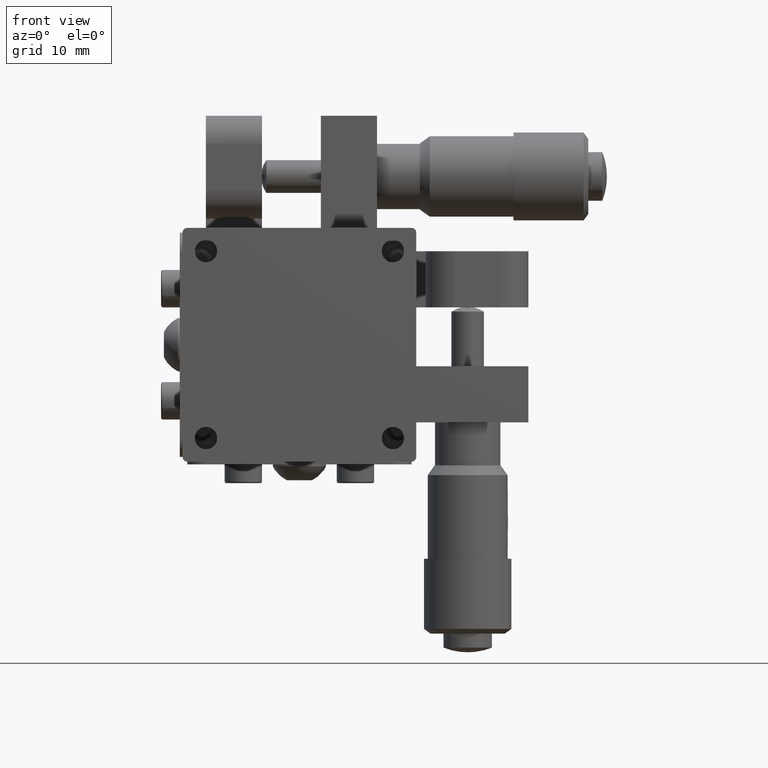
[diagram: clean part render]
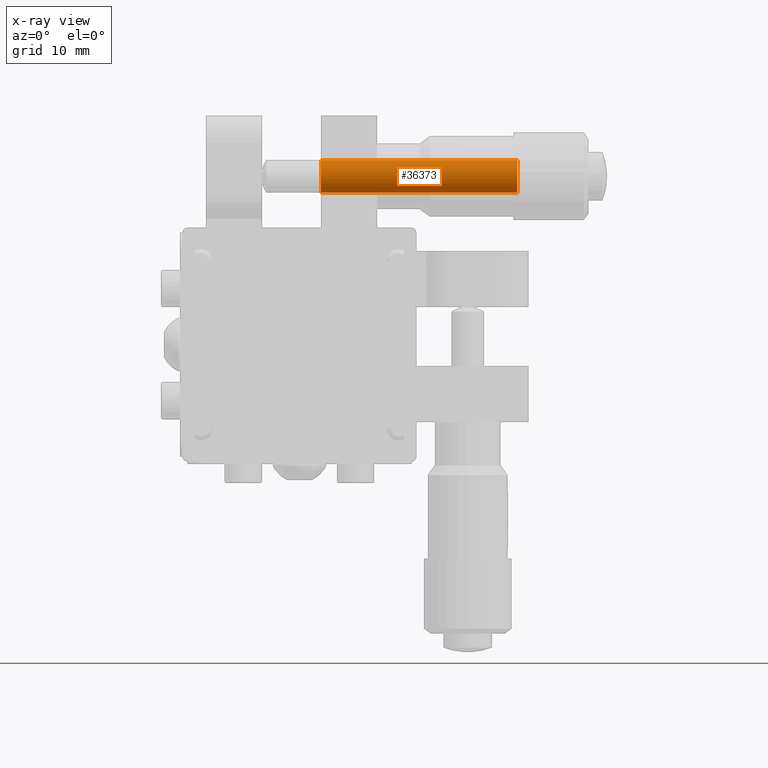
[diagram: x-ray — body ghosted, one internal face saturated and labeled with its STEP entity id]
A machine part, front view, then the same camera in x-ray: the body is ghosted and one INTERNAL B-rep face — a face not visible from any outside direction — is saturated and labeled: STEP entity #36373.
In plain terms, the highlighted cylindrical surface (edge-blend (fillet) strip) has radius 1.75 mm, axis along (-1, -0, -0).
Its self-contained STEP definition (entity closure, byte-faithful):
#4600 = DIRECTION ( 'NONE',  ( -1.000000000000000000, -1.224646799147347800E-016, -1.198260150553015100E-016 ) ) ;
#7973 = EDGE_CURVE ( 'NONE', #49894, #73610, #59152, .T. ) ;
#9231 = CARTESIAN_POINT ( 'NONE',  ( 23.30000000000002600, 7.333525501850187900, 16.25510145270401800 ) ) ;
#11618 = CARTESIAN_POINT ( 'NONE',  ( 23.30000000000002600, 7.199999999999996600, 18.00000000000000700 ) ) ;
#16968 = CARTESIAN_POINT ( 'NONE',  ( 23.30000000000002600, 7.066474498149805300, 19.74489854729599300 ) ) ;
#21613 = CARTESIAN_POINT ( 'NONE',  ( 2.300000000000058900, 7.199999999999994000, 18.00000000000000400 ) ) ;
#25338 = LINE ( 'NONE', #9231, #35847 ) ;
#26927 = DIRECTION ( 'NONE',  ( -1.000000000000000000, -1.224646799147348000E-016, -1.198260150553012400E-016 ) ) ;
#27433 = CARTESIAN_POINT ( 'NONE',  ( 2.300000000000058900, 7.333525501850187000, 16.25510145270401500 ) ) ;
#28416 = EDGE_LOOP ( 'NONE', ( #60591, #28838, #38264, #70646 ) ) ;
#28838 = ORIENTED_EDGE ( 'NONE', *, *, #73701, .T. ) ;
#29164 = DIRECTION ( 'NONE',  ( -1.000000000000000000, -1.224646799147347800E-016, -1.198260150553015100E-016 ) ) ;
#29641 = CYLINDRICAL_SURFACE ( 'NONE', #56727, 1.749999999999998400 ) ;
#34502 = VERTEX_POINT ( 'NONE', #16968 ) ;
#35847 = VECTOR ( 'NONE', #75801, 1000.000000000000000 ) ;
#36373 = ADVANCED_FACE ( 'NONE', ( #63157 ), #29641, .F. ) ;
#38264 = ORIENTED_EDGE ( 'NONE', *, *, #7973, .T. ) ;
#41477 = DIRECTION ( 'NONE',  ( -1.000000000000000000, -1.224646799147348000E-016, -1.198260150553012400E-016 ) ) ;
#41877 = DIRECTION ( 'NONE',  ( 0.0000000000000000000, -0.07630028677153800900, 0.9970848841691368800 ) ) ;
#49598 = CARTESIAN_POINT ( 'NONE',  ( 23.30000000000002600, 7.066474498149805300, 19.74489854729599300 ) ) ;
#49894 = VERTEX_POINT ( 'NONE', #27433 ) ;
#54179 = CIRCLE ( 'NONE', #84522, 1.749999999999998400 ) ;
#56727 = AXIS2_PLACEMENT_3D ( 'NONE', #11618, #26927, #41877 ) ;
#59152 = CIRCLE ( 'NONE', #92462, 1.749999999999998400 ) ;
#60591 = ORIENTED_EDGE ( 'NONE', *, *, #81249, .F. ) ;
#62774 = CARTESIAN_POINT ( 'NONE',  ( 23.30000000000002600, 7.333525501850187000, 16.25510145270401800 ) ) ;
#63157 = FACE_OUTER_BOUND ( 'NONE', #28416, .T. ) ;
#63805 = LINE ( 'NONE', #49598, #75481 ) ;
#67034 = CARTESIAN_POINT ( 'NONE',  ( 2.300000000000058900, 7.066474498149802700, 19.74489854729598900 ) ) ;
#70646 = ORIENTED_EDGE ( 'NONE', *, *, #85349, .F. ) ;
#71143 = DIRECTION ( 'NONE',  ( 0.0000000000000000000, -0.07630028677153800900, 0.9970848841691368800 ) ) ;
#73610 = VERTEX_POINT ( 'NONE', #67034 ) ;
#73701 = EDGE_CURVE ( 'NONE', #81284, #49894, #25338, .T. ) ;
#75481 = VECTOR ( 'NONE', #41477, 1000.000000000000000 ) ;
#75801 = DIRECTION ( 'NONE',  ( -1.000000000000000000, -1.224646799147348000E-016, -1.198260150553012400E-016 ) ) ;
#81249 = EDGE_CURVE ( 'NONE', #81284, #34502, #54179, .T. ) ;
#81284 = VERTEX_POINT ( 'NONE', #62774 ) ;
#84522 = AXIS2_PLACEMENT_3D ( 'NONE', #92656, #4600, #71143 ) ;
#85349 = EDGE_CURVE ( 'NONE', #34502, #73610, #63805, .T. ) ;
#88524 = DIRECTION ( 'NONE',  ( 0.0000000000000000000, -0.07630028677153800900, 0.9970848841691368800 ) ) ;
#92462 = AXIS2_PLACEMENT_3D ( 'NONE', #21613, #29164, #88524 ) ;
#92656 = CARTESIAN_POINT ( 'NONE',  ( 23.30000000000002600, 7.199999999999996600, 18.00000000000000700 ) ) ;